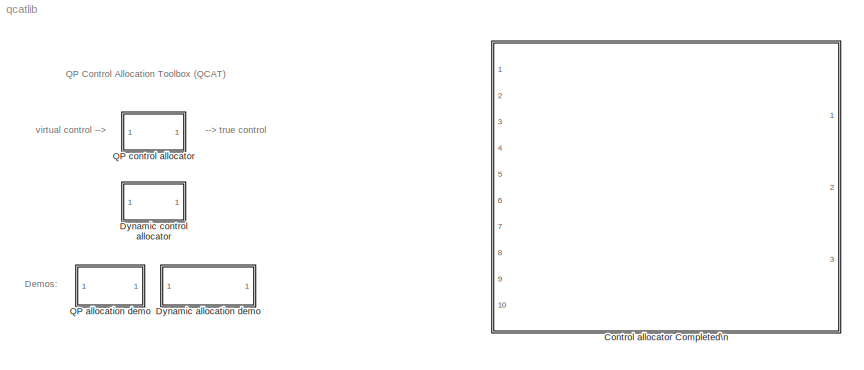
MODEL qcatlib
KIND library
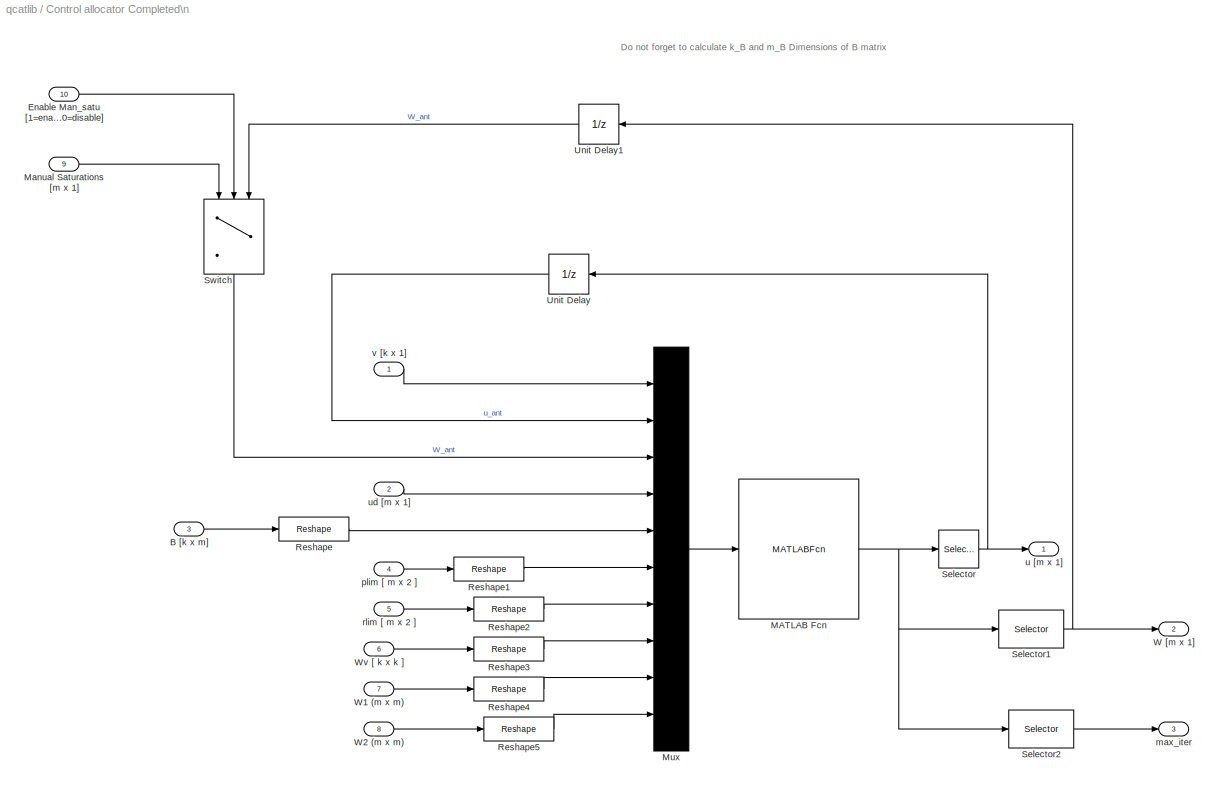
BLOCK [SubSystem] Control allocator Completed\n
  Ports = [10, 3]
  RequestExecContextInheritance = off
  SID = 19
  TreatAsAtomicUnit = on
BLOCK [Inport] Control allocator Completed\n/B [k x m]
  IconDisplay = Port number
  Port = 3
  SID = 36
BLOCK [Inport] Control allocator Completed\n/Enable Man_satu [1=enable; 0=disable]
  IconDisplay = Port number
  Port = 10
  SID = 67
BLOCK [MATLABFcn] Control allocator Completed\n/MATLAB Fcn
  MATLABFcn = CA_COMP(  u(1:k_B),  u(k_B+1:k_B+m_B),  u(k_B+m_B+1:k_B+2*m_B),  u(k_B+2*m_B+1:k_B+3*m_B),  u(k_B+3*m_B+1:k_B+3*m_B+m_B*k_B),  u(k_B+3*m_B+m_B*k_B+1:k_B+5*m_B+m_B*k_B),u(k_B+5*m_B+m_B*k_B+1:k_B+7*m_B+m_B*k_B),T,  u(k_B+7*m_B+m_B*k_B+1:k_B+7*m_B+m_B*k_B+k_B*k_B),  u(k_B+7*m_B+m_B*k_B+k_B*k_B+1:k_B+7*m_B+m_B*k_B+k_B*k_B+m_B*m_B),   u(k_B+7*m_B+m_B*k_B+k_B*k_B+m_B*m_B+1:k_B+7*m_B+m_B*k_B+k_B*k_B+2*m_...<+53ch>
  OutputDimensions = m_B*2+1
  Ports = [1, 1]
  SID = 47
  SampleTime = T
BLOCK [Inport] Control allocator Completed\n/Manual Saturations [m x 1]
  IconDisplay = Port number
  Port = 9
  SID = 42
BLOCK [Mux] Control allocator Completed\n/Mux
  DisplayOption = bar
  Inputs = 10
  Ports = [10, 1]
  SID = 48
BLOCK [Reshape] Control allocator Completed\n/Reshape
  OutputDimensionality = Column vector (2-D)
  Ports = [1, 1]
  SID = 49
BLOCK [Reshape] Control allocator Completed\n/Reshape1
  OutputDimensionality = Column vector (2-D)
  Ports = [1, 1]
  SID = 50
BLOCK [Reshape] Control allocator Completed\n/Reshape2
  OutputDimensionality = Column vector (2-D)
  Ports = [1, 1]
  SID = 51
BLOCK [Reshape] Control allocator Completed\n/Reshape3
  OutputDimensionality = Column vector (2-D)
  Ports = [1, 1]
  SID = 52
BLOCK [Reshape] Control allocator Completed\n/Reshape4
  OutputDimensionality = Column vector (2-D)
  Ports = [1, 1]
  SID = 53
BLOCK [Reshape] Control allocator Completed\n/Reshape5
  OutputDimensionality = Column vector (2-D)
  Ports = [1, 1]
  SID = 54
BLOCK [Selector] Control allocator Completed\n/Selector
  Indices = [1:m_B]
  InputPortWidth = 2*m_B+1
  Ports = [1, 1]
  SID = 55
BLOCK [Selector] Control allocator Completed\n/Selector1
  Indices = [m_B+1:2*m_B]
  InputPortWidth = m_B*2+1
  Ports = [1, 1]
  SID = 56
BLOCK [Selector] Control allocator Completed\n/Selector2
  Indices = m_B*2+1
  InputPortWidth = m_B*2+1
  Ports = [1, 1]
  SID = 57
BLOCK [Switch] Control allocator Completed\n/Switch
  InputSameDT = off
  SID = 70
  SampleTime = T
  SaturateOnIntegerOverflow = off
  Threshold = 0.5
BLOCK [UnitDelay] Control allocator Completed\n/Unit Delay
  InitialCondition = zeros(m_B,1)
  SID = 58
  SampleTime = T
BLOCK [UnitDelay] Control allocator Completed\n/Unit Delay1
  InitialCondition = zeros(m_B,1)
  SID = 59
  SampleTime = T
BLOCK [Outport] Control allocator Completed\n/W  [m x 1]
  IconDisplay = Port number
  Port = 2
  SID = 61
BLOCK [Inport] Control allocator Completed\n/W1 (m x m)
  IconDisplay = Port number
  Port = 7
  SID = 40
BLOCK [Inport] Control allocator Completed\n/W2 (m x m)
  IconDisplay = Port number
  Port = 8
  SID = 41
BLOCK [Inport] Control allocator Completed\n/Wv [ k x k ]
  IconDisplay = Port number
  Port = 6
  SID = 39
BLOCK [Outport] Control allocator Completed\n/max_iter
  IconDisplay = Port number
  Port = 3
  SID = 62
BLOCK [Inport] Control allocator Completed\n/plim [ m x 2 ]
  IconDisplay = Port number
  Port = 4
  SID = 37
BLOCK [Inport] Control allocator Completed\n/rlim [ m x 2 ]
  IconDisplay = Port number
  Port = 5
  SID = 38
BLOCK [Outport] Control allocator Completed\n/u [m x 1]
  IconDisplay = Port number
  SID = 60
BLOCK [Inport] Control allocator Completed\n/ud [m x 1]
  IconDisplay = Port number
  Port = 2
  SID = 35
BLOCK [Inport] Control allocator Completed\n/v [k x 1]
  IconDisplay = Port number
  SID = 34
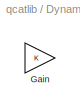
BLOCK [SubSystem] Dynamic allocation demo
  OpenFcn = open_system('dyn_alloc_demo')
  Ports = []
  RequestExecContextInheritance = off
  SID = 1
BLOCK [Gain] Dynamic allocation demo/Gain
  SID = 2
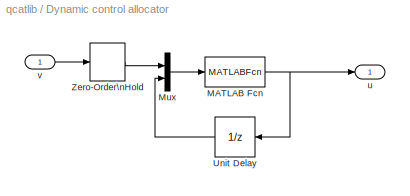
BLOCK [SubSystem] Dynamic control allocator
  Ports = [1, 1]
  RequestExecContextInheritance = off
  SID = 3
BLOCK [MATLABFcn] Dynamic control allocator/MATLAB Fcn
  MATLABFcn = dyn_ca_sl(u,B,plim,rlim,T,Wv,W1,W2,S)
  OutputDimensions = size(B,2)
  Ports = [1, 1]
  SID = 5
BLOCK [Mux] Dynamic control allocator/Mux
  DisplayOption = bar
  Inputs = 2
  Ports = [2, 1]
  SID = 6
BLOCK [UnitDelay] Dynamic control allocator/Unit Delay
  SID = 7
  SampleTime = T
BLOCK [ZeroOrderHold] Dynamic control allocator/Zero-Order\nHold
  SID = 8
  SampleTime = T
BLOCK [Outport] Dynamic control allocator/u
  IconDisplay = Port number
  SID = 9
BLOCK [Inport] Dynamic control allocator/v
  IconDisplay = Port number
  SID = 4
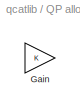
BLOCK [SubSystem] QP allocation demo
  OpenFcn = open_system('qp_alloc_demo')
  Ports = []
  RequestExecContextInheritance = off
  SID = 10
BLOCK [Gain] QP allocation demo/Gain
  SID = 11
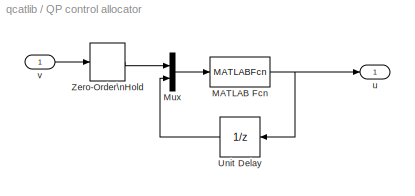
BLOCK [SubSystem] QP control allocator
  AncestorBlock = qcatlib/Dynamic control allocator
  Ports = [1, 1]
  RequestExecContextInheritance = off
  SID = 12
BLOCK [MATLABFcn] QP control allocator/MATLAB Fcn
  MATLABFcn = qp_ca_sl(u,B,plim,rlim,T,Wv,Wu,ud,alg,imax,gam,tol)
  OutputDimensions = size(B,2)
  Ports = [1, 1]
  SID = 12:2
BLOCK [Mux] QP control allocator/Mux
  DisplayOption = bar
  Inputs = 2
  Ports = [2, 1]
  SID = 12:3
BLOCK [UnitDelay] QP control allocator/Unit Delay
  SID = 12:4
  SampleTime = T
BLOCK [ZeroOrderHold] QP control allocator/Zero-Order\nHold
  SID = 12:5
  SampleTime = T
BLOCK [Outport] QP control allocator/u
  IconDisplay = Port number
  SID = 12:6
BLOCK [Inport] QP control allocator/v
  IconDisplay = Port number
  SID = 12:1
ANNOTATION (root): QP Control Allocation Toolbox (QCAT)
ANNOTATION (root): --> true control
ANNOTATION (root): Demos:
ANNOTATION (root): virtual control -->
ANNOTATION Control allocator Completed\n: Do not forget to calculate k_B and m_B Dimensions of B matrix
LINE Control allocator Completed\n/B [k x m]:1 -> Control allocator Completed\n/Reshape:1
LINE Control allocator Completed\n/Enable Man_satu [1=enable; 0=disable]:1 -> Control allocator Completed\n/Switch:2
NET Control allocator Completed\n/MATLAB Fcn:1 -> Control allocator Completed\n/Selector1:1, Control allocator Completed\n/Selector2:1, Control allocator Completed\n/Selector:1
LINE Control allocator Completed\n/Manual Saturations [m x 1]:1 -> Control allocator Completed\n/Switch:1
LINE Control allocator Completed\n/Mux:1 -> Control allocator Completed\n/MATLAB Fcn:1
LINE Control allocator Completed\n/Reshape1:1 -> Control allocator Completed\n/Mux:6
LINE Control allocator Completed\n/Reshape2:1 -> Control allocator Completed\n/Mux:7
LINE Control allocator Completed\n/Reshape3:1 -> Control allocator Completed\n/Mux:8
LINE Control allocator Completed\n/Reshape4:1 -> Control allocator Completed\n/Mux:9
LINE Control allocator Completed\n/Reshape5:1 -> Control allocator Completed\n/Mux:10
LINE Control allocator Completed\n/Reshape:1 -> Control allocator Completed\n/Mux:5
NET Control allocator Completed\n/Selector1:1 -> Control allocator Completed\n/Unit Delay1:1, Control allocator Completed\n/W  [m x 1]:1
LINE Control allocator Completed\n/Selector2:1 -> Control allocator Completed\n/max_iter:1
NET Control allocator Completed\n/Selector:1 -> Control allocator Completed\n/Unit Delay:1, Control allocator Completed\n/u [m x 1]:1
LINE Control allocator Completed\n/Switch:1 -> Control allocator Completed\n/Mux:3
LINE Control allocator Completed\n/Unit Delay1:1 -> Control allocator Completed\n/Switch:3
LINE Control allocator Completed\n/Unit Delay:1 -> Control allocator Completed\n/Mux:2
LINE Control allocator Completed\n/W1 (m x m):1 -> Control allocator Completed\n/Reshape4:1
LINE Control allocator Completed\n/W2 (m x m):1 -> Control allocator Completed\n/Reshape5:1
LINE Control allocator Completed\n/Wv [ k x k ]:1 -> Control allocator Completed\n/Reshape3:1
LINE Control allocator Completed\n/plim [ m x 2 ]:1 -> Control allocator Completed\n/Reshape1:1
LINE Control allocator Completed\n/rlim [ m x 2 ]:1 -> Control allocator Completed\n/Reshape2:1
LINE Control allocator Completed\n/ud [m x 1]:1 -> Control allocator Completed\n/Mux:4
LINE Control allocator Completed\n/v [k x 1]:1 -> Control allocator Completed\n/Mux:1
NET Dynamic control allocator/MATLAB Fcn:1 -> Dynamic control allocator/Unit Delay:1, Dynamic control allocator/u:1
LINE Dynamic control allocator/Mux:1 -> Dynamic control allocator/MATLAB Fcn:1
LINE Dynamic control allocator/Unit Delay:1 -> Dynamic control allocator/Mux:2
LINE Dynamic control allocator/Zero-Order\nHold:1 -> Dynamic control allocator/Mux:1
LINE Dynamic control allocator/v:1 -> Dynamic control allocator/Zero-Order\nHold:1
NET QP control allocator/MATLAB Fcn:1 -> QP control allocator/Unit Delay:1, QP control allocator/u:1
LINE QP control allocator/Mux:1 -> QP control allocator/MATLAB Fcn:1
LINE QP control allocator/Unit Delay:1 -> QP control allocator/Mux:2
LINE QP control allocator/Zero-Order\nHold:1 -> QP control allocator/Mux:1
LINE QP control allocator/v:1 -> QP control allocator/Zero-Order\nHold:1
note: NET lines group one-source signal fan-out (src -> all destinations, sorted); 1:1 wires keep LINE
